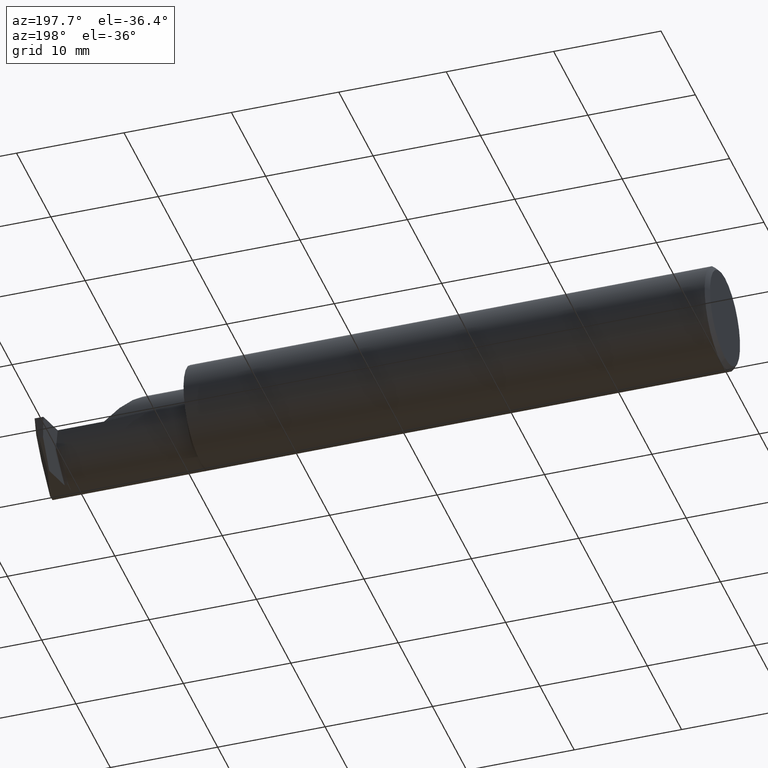
[diagram: clean part render]
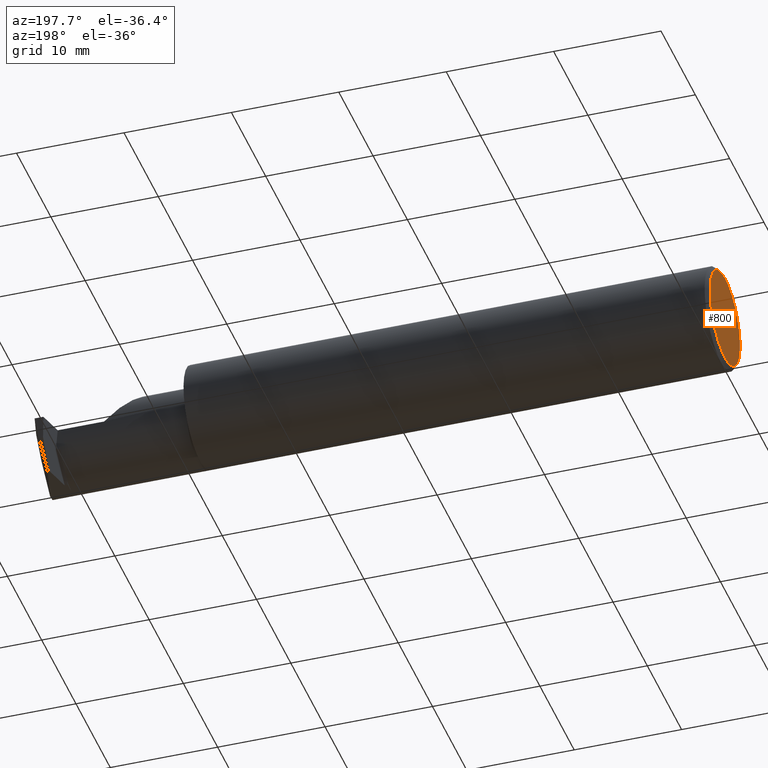
[diagram: same view with one face highlighted and labeled with its STEP entity id]
A machine part, auxiliary view. The second image highlights one B-rep face of the part: STEP entity #800.
In plain terms, the highlighted planar face has unit normal (1, 0, 0).
Its self-contained STEP definition (entity closure, byte-faithful):
#63 = CARTESIAN_POINT ( 'NONE',  ( 0.000000000000000000, 0.000000000000000000, 0.000000000000000000 ) ) ;
#112 = AXIS2_PLACEMENT_3D ( 'NONE', #146, #944, #484 ) ;
#124 = AXIS2_PLACEMENT_3D ( 'NONE', #63, #505, #204 ) ;
#132 = DIRECTION ( 'NONE',  ( -1.000000000000000000, -0.000000000000000000, -0.000000000000000000 ) ) ;
#146 = CARTESIAN_POINT ( 'NONE',  ( 0.000000000000000000, 0.000000000000000000, 0.000000000000000000 ) ) ;
#204 = DIRECTION ( 'NONE',  ( 0.000000000000000000, 0.000000000000000000, -1.000000000000000000 ) ) ;
#257 = CARTESIAN_POINT ( 'NONE',  ( 0.000000000000000000, 0.000000000000000000, -0.1723499999999993371 ) ) ;
#259 = EDGE_LOOP ( 'NONE', ( #791, #777 ) ) ;
#277 = VERTEX_POINT ( 'NONE', #744 ) ;
#283 = EDGE_CURVE ( 'NONE', #796, #277, #920, .T. ) ;
#294 = DIRECTION ( 'NONE',  ( 0.000000000000000000, 0.000000000000000000, -1.000000000000000000 ) ) ;
#336 = PLANE ( 'NONE',  #112 ) ;
#363 = AXIS2_PLACEMENT_3D ( 'NONE', #680, #132, #294 ) ;
#415 = EDGE_CURVE ( 'NONE', #277, #796, #667, .T. ) ;
#484 = DIRECTION ( 'NONE',  ( 0.000000000000000000, 0.000000000000000000, -1.000000000000000000 ) ) ;
#505 = DIRECTION ( 'NONE',  ( -1.000000000000000000, -0.000000000000000000, -0.000000000000000000 ) ) ;
#667 = CIRCLE ( 'NONE', #363, 0.1723499999999993371 ) ;
#680 = CARTESIAN_POINT ( 'NONE',  ( 0.000000000000000000, 0.000000000000000000, 0.000000000000000000 ) ) ;
#695 = FACE_OUTER_BOUND ( 'NONE', #259, .T. ) ;
#744 = CARTESIAN_POINT ( 'NONE',  ( 0.000000000000000000, 2.202527268266510421E-17, 0.1723499999999993371 ) ) ;
#777 = ORIENTED_EDGE ( 'NONE', *, *, #415, .T. ) ;
#791 = ORIENTED_EDGE ( 'NONE', *, *, #283, .T. ) ;
#796 = VERTEX_POINT ( 'NONE', #257 ) ;
#800 = ADVANCED_FACE ( 'NONE', ( #695 ), #336, .F. ) ;
#920 = CIRCLE ( 'NONE', #124, 0.1723499999999993371 ) ;
#944 = DIRECTION ( 'NONE',  ( 1.000000000000000000, 0.000000000000000000, 0.000000000000000000 ) ) ;